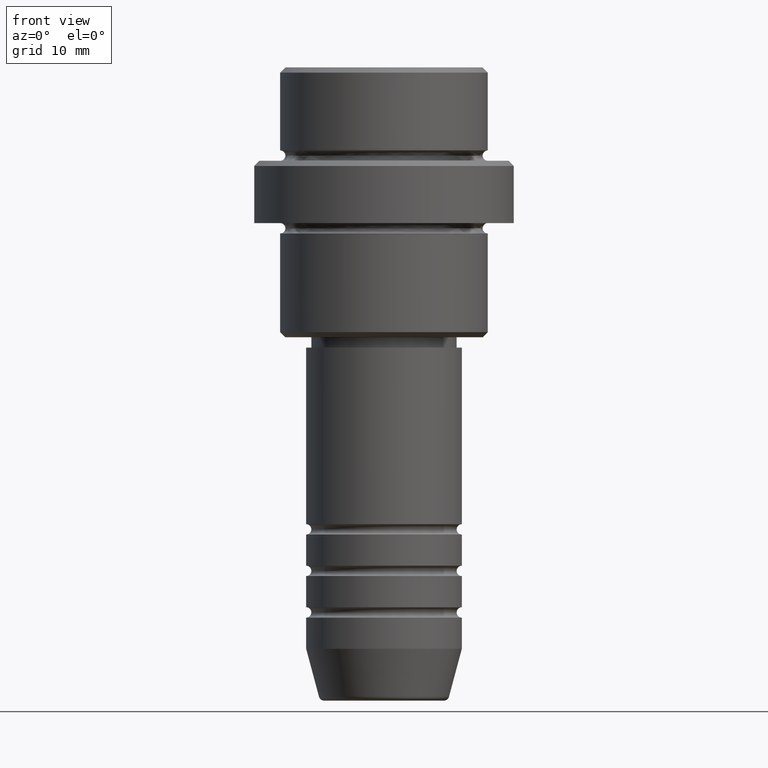
[diagram: clean part render]
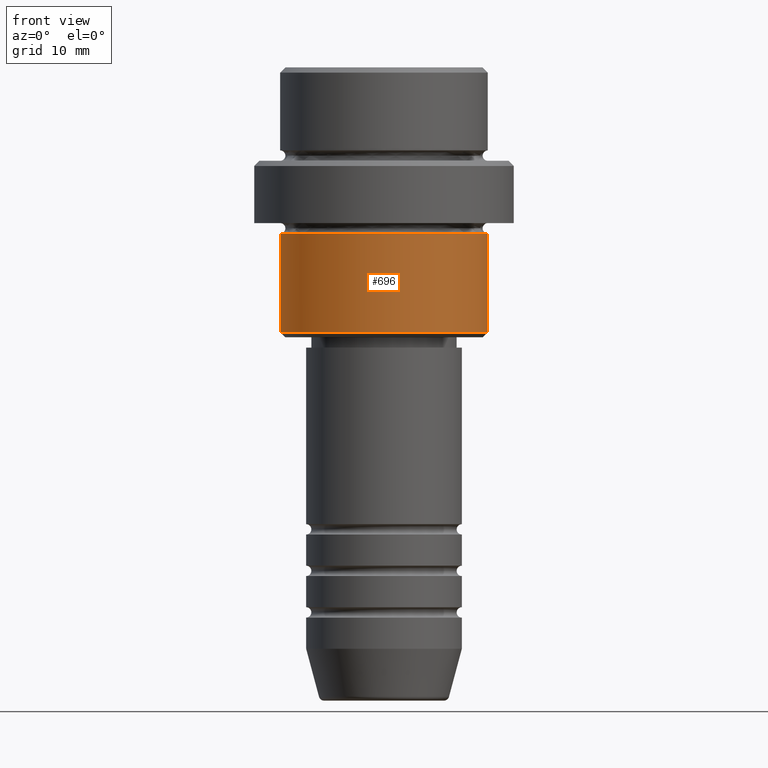
[diagram: same view with one face highlighted and labeled with its STEP entity id]
A machine part, front view. The second image highlights one B-rep face of the part: STEP entity #696.
In plain terms, the highlighted cylindrical surface (partial cylindrical patch) has radius 10 mm, axis along (-0, -0, 1).
Its self-contained STEP definition (entity closure, byte-faithful):
#30 = FACE_OUTER_BOUND ( 'NONE', #1388, .T. ) ;
#157 = ORIENTED_EDGE ( 'NONE', *, *, #222, .F. ) ;
#164 = DIRECTION ( 'NONE',  ( -0.000000000000000000, -0.000000000000000000, 1.000000000000000000 ) ) ;
#169 = CIRCLE ( 'NONE', #901, 10.00000000000000000 ) ;
#222 = EDGE_CURVE ( 'NONE', #383, #286, #1244, .T. ) ;
#231 = CARTESIAN_POINT ( 'NONE',  ( 0.000000000000000000, 0.000000000000000000, -25.50000000000001421 ) ) ;
#286 = VERTEX_POINT ( 'NONE', #1261 ) ;
#301 = CARTESIAN_POINT ( 'NONE',  ( -10.00000000000000000, 1.224646799147353256E-15, 0.000000000000000000 ) ) ;
#383 = VERTEX_POINT ( 'NONE', #1041 ) ;
#444 = EDGE_CURVE ( 'NONE', #633, #286, #1369, .T. ) ;
#497 = AXIS2_PLACEMENT_3D ( 'NONE', #1295, #1210, #634 ) ;
#518 = DIRECTION ( 'NONE',  ( -0.000000000000000000, -0.000000000000000000, 1.000000000000000000 ) ) ;
#522 = AXIS2_PLACEMENT_3D ( 'NONE', #730, #164, #1359 ) ;
#566 = VECTOR ( 'NONE', #518, 1000.000000000000000 ) ;
#590 = CARTESIAN_POINT ( 'NONE',  ( 10.00000000000000000, 0.000000000000000000, 0.000000000000000000 ) ) ;
#623 = EDGE_CURVE ( 'NONE', #965, #633, #169, .T. ) ;
#633 = VERTEX_POINT ( 'NONE', #978 ) ;
#634 = DIRECTION ( 'NONE',  ( 1.000000000000000000, 0.000000000000000000, 0.000000000000000000 ) ) ;
#660 = DIRECTION ( 'NONE',  ( -0.000000000000000000, -0.000000000000000000, 1.000000000000000000 ) ) ;
#696 = ADVANCED_FACE ( 'NONE', ( #30 ), #806, .T. ) ;
#730 = CARTESIAN_POINT ( 'NONE',  ( 0.000000000000000000, 0.000000000000000000, 0.000000000000000000 ) ) ;
#759 = ORIENTED_EDGE ( 'NONE', *, *, #623, .T. ) ;
#806 = CYLINDRICAL_SURFACE ( 'NONE', #522, 10.00000000000000000 ) ;
#828 = LINE ( 'NONE', #301, #1378 ) ;
#901 = AXIS2_PLACEMENT_3D ( 'NONE', #231, #660, #1106 ) ;
#965 = VERTEX_POINT ( 'NONE', #1145 ) ;
#978 = CARTESIAN_POINT ( 'NONE',  ( 10.00000000000000000, 0.000000000000000000, -25.50000000000001421 ) ) ;
#1041 = CARTESIAN_POINT ( 'NONE',  ( -10.00000000000000000, 1.224646799147353256E-15, -16.00000000000000000 ) ) ;
#1051 = DIRECTION ( 'NONE',  ( -0.000000000000000000, -0.000000000000000000, 1.000000000000000000 ) ) ;
#1106 = DIRECTION ( 'NONE',  ( -1.000000000000000000, 0.000000000000000000, 0.000000000000000000 ) ) ;
#1145 = CARTESIAN_POINT ( 'NONE',  ( -10.00000000000000000, 1.224646799147353256E-15, -25.50000000000001421 ) ) ;
#1210 = DIRECTION ( 'NONE',  ( -0.000000000000000000, -0.000000000000000000, 1.000000000000000000 ) ) ;
#1244 = CIRCLE ( 'NONE', #497, 10.00000000000000000 ) ;
#1261 = CARTESIAN_POINT ( 'NONE',  ( 10.00000000000000000, 0.000000000000000000, -16.00000000000000000 ) ) ;
#1286 = ORIENTED_EDGE ( 'NONE', *, *, #1340, .F. ) ;
#1295 = CARTESIAN_POINT ( 'NONE',  ( 0.000000000000000000, 0.000000000000000000, -16.00000000000000000 ) ) ;
#1323 = ORIENTED_EDGE ( 'NONE', *, *, #444, .T. ) ;
#1340 = EDGE_CURVE ( 'NONE', #965, #383, #828, .T. ) ;
#1359 = DIRECTION ( 'NONE',  ( 1.000000000000000000, 0.000000000000000000, 0.000000000000000000 ) ) ;
#1369 = LINE ( 'NONE', #590, #566 ) ;
#1378 = VECTOR ( 'NONE', #1051, 1000.000000000000000 ) ;
#1388 = EDGE_LOOP ( 'NONE', ( #1286, #759, #1323, #157 ) ) ;